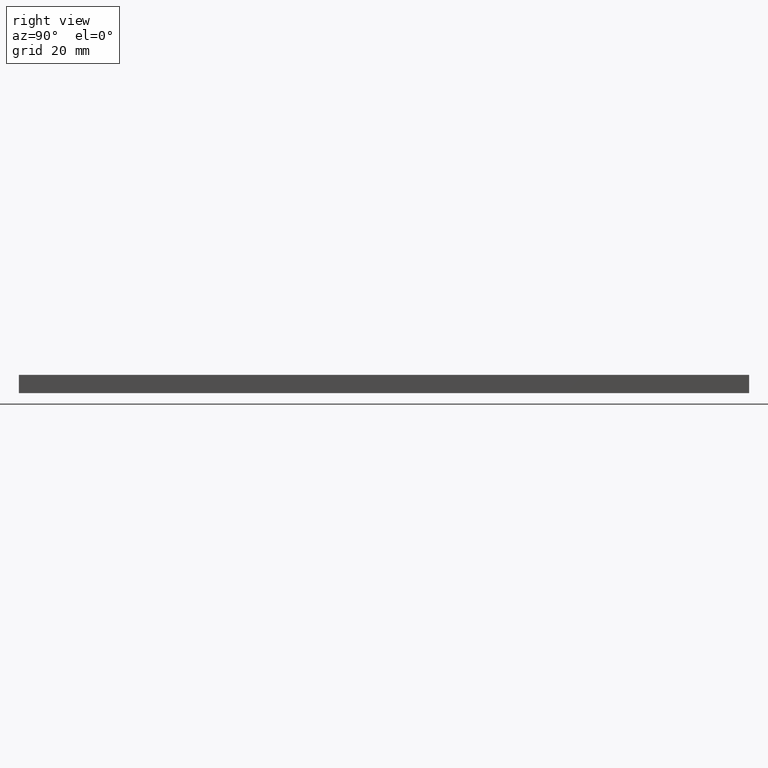
[diagram: clean part render]
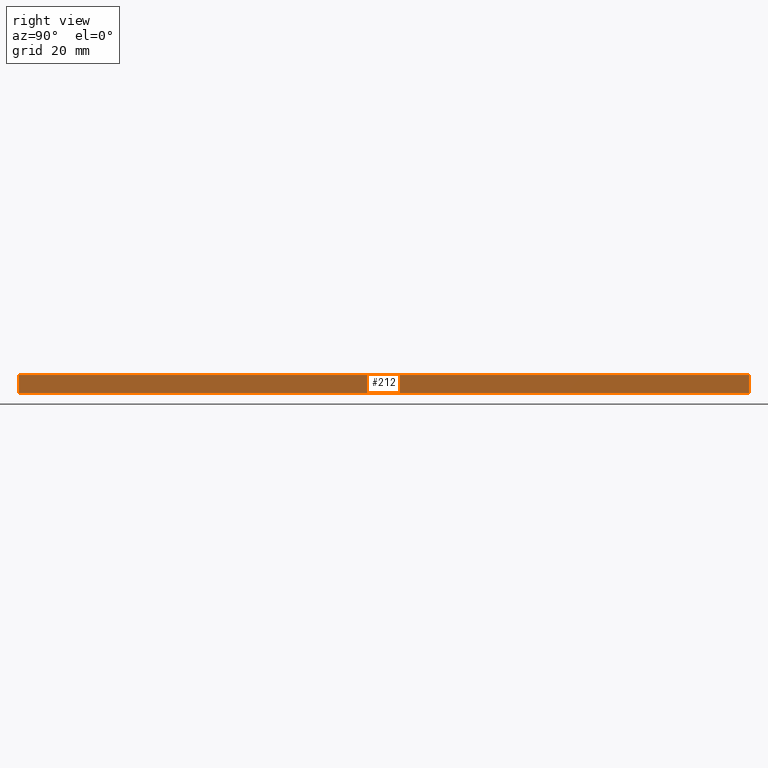
[diagram: same view with one face highlighted and labeled with its STEP entity id]
A machine part, right view. The second image highlights one B-rep face of the part: STEP entity #212.
In plain terms, the highlighted planar face has unit normal (1, 0, 0).
Its self-contained STEP definition (entity closure, byte-faithful):
#6 = VECTOR ( 'NONE', #55, 1000.000000000000000 ) ;
#16 = CARTESIAN_POINT ( 'NONE',  ( 10.00000000000000000, 0.0000000000000000000, 5.000000000000000000 ) ) ;
#22 = VERTEX_POINT ( 'NONE', #195 ) ;
#27 = VERTEX_POINT ( 'NONE', #188 ) ;
#29 = CARTESIAN_POINT ( 'NONE',  ( 10.00000000000000000, 0.0000000000000000000, 0.0000000000000000000 ) ) ;
#33 = LINE ( 'NONE', #70, #135 ) ;
#37 = ORIENTED_EDGE ( 'NONE', *, *, #132, .T. ) ;
#43 = DIRECTION ( 'NONE',  ( -0.0000000000000000000, -0.0000000000000000000, 1.000000000000000000 ) ) ;
#54 = EDGE_LOOP ( 'NONE', ( #64, #97, #80, #37 ) ) ;
#55 = DIRECTION ( 'NONE',  ( 0.0000000000000000000, -1.000000000000000000, 0.0000000000000000000 ) ) ;
#64 = ORIENTED_EDGE ( 'NONE', *, *, #211, .F. ) ;
#70 = CARTESIAN_POINT ( 'NONE',  ( 10.00000000000000000, 1000.000000000000000, 5.000000000000000000 ) ) ;
#71 = VERTEX_POINT ( 'NONE', #198 ) ;
#80 = ORIENTED_EDGE ( 'NONE', *, *, #153, .T. ) ;
#83 = AXIS2_PLACEMENT_3D ( 'NONE', #103, #123, #203 ) ;
#87 = CARTESIAN_POINT ( 'NONE',  ( 10.00000000000000000, 200.0000000000000000, 0.0000000000000000000 ) ) ;
#97 = ORIENTED_EDGE ( 'NONE', *, *, #228, .F. ) ;
#101 = LINE ( 'NONE', #87, #170 ) ;
#103 = CARTESIAN_POINT ( 'NONE',  ( 10.00000000000000000, 1000.000000000000000, 0.0000000000000000000 ) ) ;
#114 = LINE ( 'NONE', #29, #168 ) ;
#119 = VERTEX_POINT ( 'NONE', #16 ) ;
#123 = DIRECTION ( 'NONE',  ( 1.000000000000000000, 0.0000000000000000000, 0.0000000000000000000 ) ) ;
#132 = EDGE_CURVE ( 'NONE', #71, #119, #33, .T. ) ;
#135 = VECTOR ( 'NONE', #231, 1000.000000000000000 ) ;
#138 = FACE_OUTER_BOUND ( 'NONE', #54, .T. ) ;
#153 = EDGE_CURVE ( 'NONE', #22, #71, #101, .T. ) ;
#168 = VECTOR ( 'NONE', #194, 1000.000000000000000 ) ;
#170 = VECTOR ( 'NONE', #43, 1000.000000000000000 ) ;
#188 = CARTESIAN_POINT ( 'NONE',  ( 10.00000000000000000, 0.0000000000000000000, 0.0000000000000000000 ) ) ;
#194 = DIRECTION ( 'NONE',  ( -0.0000000000000000000, -0.0000000000000000000, 1.000000000000000000 ) ) ;
#195 = CARTESIAN_POINT ( 'NONE',  ( 10.00000000000000000, 200.0000000000000000, 0.0000000000000000000 ) ) ;
#198 = CARTESIAN_POINT ( 'NONE',  ( 10.00000000000000000, 200.0000000000000000, 5.000000000000000000 ) ) ;
#203 = DIRECTION ( 'NONE',  ( 0.0000000000000000000, 0.0000000000000000000, -1.000000000000000000 ) ) ;
#206 = CARTESIAN_POINT ( 'NONE',  ( 10.00000000000000000, 1000.000000000000000, 0.0000000000000000000 ) ) ;
#211 = EDGE_CURVE ( 'NONE', #27, #119, #114, .T. ) ;
#212 = ADVANCED_FACE ( 'NONE', ( #138 ), #219, .T. ) ;
#213 = LINE ( 'NONE', #206, #6 ) ;
#219 = PLANE ( 'NONE',  #83 ) ;
#228 = EDGE_CURVE ( 'NONE', #22, #27, #213, .T. ) ;
#231 = DIRECTION ( 'NONE',  ( 0.0000000000000000000, -1.000000000000000000, 0.0000000000000000000 ) ) ;